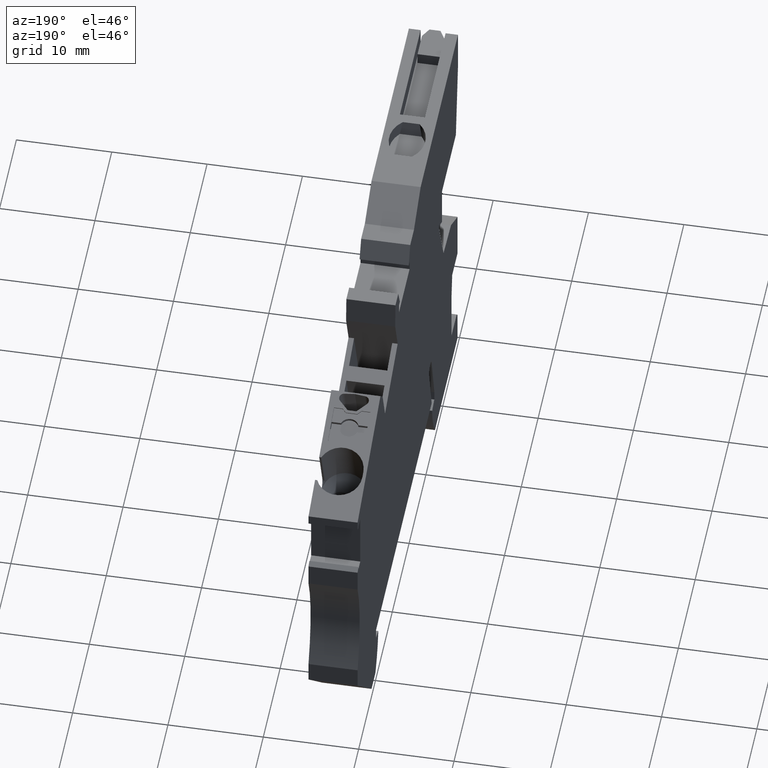
[diagram: clean part render]
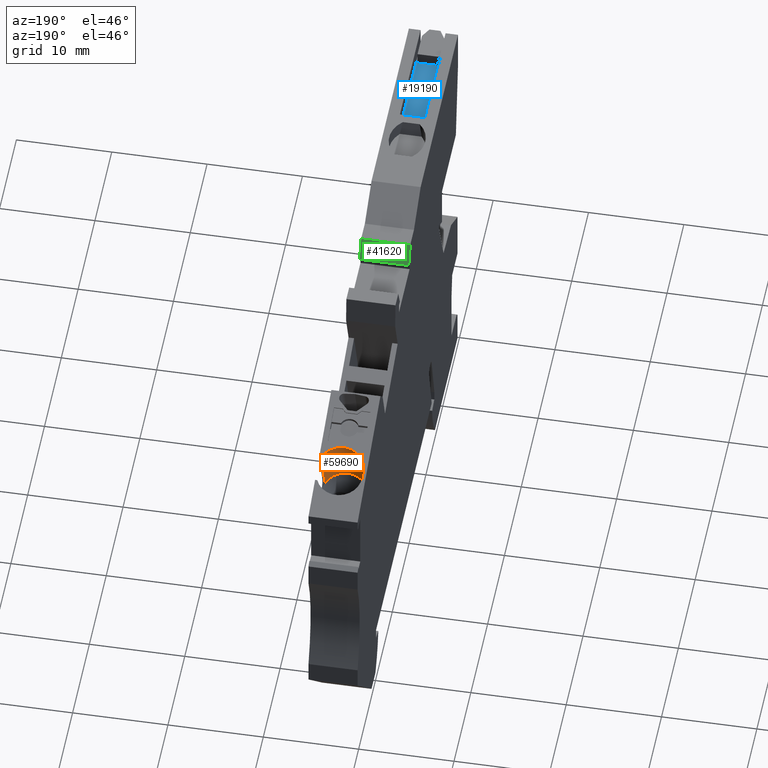
[diagram: same view with three faces highlighted in distinct colors, each labeled with its STEP entity id]
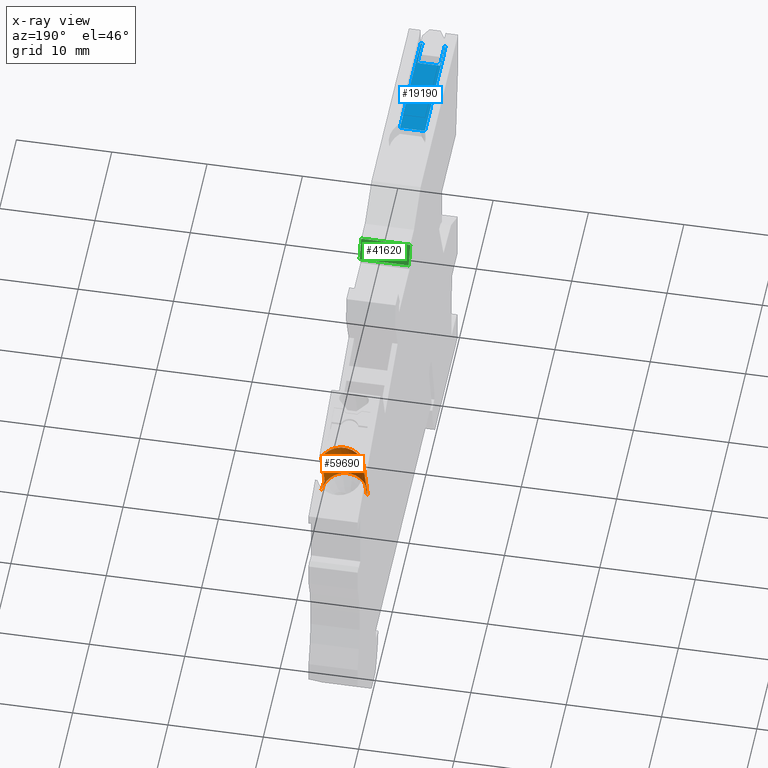
[diagram: x-ray of the same camera — body ghosted, the three highlighted faces saturated]
A machine part, auxiliary view with three faces highlighted in distinct colors.
The next image is the same camera in x-ray (body ghosted, the three faces saturated) — at least one of them is partly hidden behind the body in this view.
Their STEP definitions:

[orange] entity #59690 — the highlighted cylindrical surface (edge-blend (fillet) strip) has radius 2.4 mm, axis along (0, -0.342, -0.9397).
#4180=CARTESIAN_POINT('',(53.5100580872165,29.6902440694974,
-1.41213107160779E-7));
#4190=VERTEX_POINT('',#4180);
#10540=CARTESIAN_POINT('',(53.5100580844968,29.6902440580706,
-4.79999992240207));
#10550=VERTEX_POINT('',#10540);
#10600=CARTESIAN_POINT('',(54.3325377191678,33.2527947527318,
-4.79999992240662));
#10610=DIRECTION('',(-0.224951054344224,-0.974370064785153,
1.2457513775287E-12));
#10620=VECTOR('',#10610,1.);
#10630=LINE('',#10600,#10620);
#10640=CARTESIAN_POINT('',(54.9497449177092,35.9262128426441,
-4.79999992241005));
#10650=VERTEX_POINT('',#10640);
#10660=EDGE_CURVE('',#10650,#10550,#10630,.T.);
#14830=CARTESIAN_POINT('',(54.9497449177146,35.9262128426459,
-2.39999992241005));
#14840=DIRECTION('',(0.224951054344223,0.974370064785153,
-1.2457513775287E-12));
#14850=DIRECTION('',(4.85110966048145E-12,1.58552843778115E-13,1.));
#14860=AXIS2_PLACEMENT_3D('',#14830,#14840,#14850);
#14870=CIRCLE('',#14860,2.4);
#14880=CARTESIAN_POINT('',(53.9753748529301,36.1511638969928,
-0.218257499482878));
#14890=VERTEX_POINT('',#14880);
#14900=EDGE_CURVE('',#10650,#14890,#14870,.T.);
#15150=CARTESIAN_POINT('',(53.7350092267039,30.6646145035786,
0.479087859155975));
#15160=DIRECTION('',(2.24977625958046E-12,7.59117980544477E-13,1.));
#15170=DIRECTION('',(-0.974370064786396,0.224951054338839,
2.02135024971126E-12));
#15180=AXIS2_PLACEMENT_3D('',#15150,#15160,#15170);
#15190=TOROIDAL_SURFACE('',#15180,1.99018932402345,1.1);
#15670=CARTESIAN_POINT('',(52.6377552293482,30.3572967719191,
-0.218257499747246));
#15680=VERTEX_POINT('',#15670);
#15710=CARTESIAN_POINT('',(54.3325377191732,33.2527947527336,
-2.39999992240663));
#15720=DIRECTION('',(-0.224951054344224,-0.974370064785153,
1.24575137752871E-12));
#15730=DIRECTION('',(4.85110966048145E-12,1.58552843778081E-13,1.));
#15740=AXIS2_PLACEMENT_3D('',#15710,#15720,#15730);
#15750=CYLINDRICAL_SURFACE('',#15740,2.4);
#15760=CARTESIAN_POINT('',(53.5100581724138,29.6902444388583,
7.75979173773035E-8));
#15770=CARTESIAN_POINT('',(53.4866583937477,29.6956467034307,
7.75979210630361E-8));
#15780=CARTESIAN_POINT('',(53.4633810233544,29.7017306069387,
-0.0003610276634582));
#15790=CARTESIAN_POINT('',(53.4402968633737,29.7084796455487,
-0.00108242851969021));
#15800=CARTESIAN_POINT('',(53.4172127572336,29.7152286684175,
-0.00180382769335745));
#15810=CARTESIAN_POINT('',(53.3943232174725,29.7226424500266,
-0.00288548521188756));
#15820=CARTESIAN_POINT('',(53.3716968483296,29.7306921738519,
-0.00431864322120491));
#15830=CARTESIAN_POINT('',(53.3490686019926,29.7387425655217,
-0.00575192013230397));
#15840=CARTESIAN_POINT('',(53.3267125472656,29.7474252737895,
-0.00753590451697121));
#15850=CARTESIAN_POINT('',(53.3046687863748,29.7567100127158,
-0.00965643602230337));
#15860=CARTESIAN_POINT('',(53.2826144226945,29.7659992174923,
-0.0117779874783284));
#15870=CARTESIAN_POINT('',(53.2608224696534,29.7759124720335,
-0.0142413856634782));
#15880=CARTESIAN_POINT('',(53.2393463493926,29.7864152783823,
-0.0170306162525841));
#15890=CARTESIAN_POINT('',(53.2178702769168,29.796918061362,
-0.0198198406355622));
#15900=CARTESIAN_POINT('',(53.1967109722083,29.808009941747,
-0.022934759229247));
#15910=CARTESIAN_POINT('',(53.1759181582113,29.8196473232901,
-0.0263532958439706));
#15920=CARTESIAN_POINT('',(53.1551253132703,29.8312847221521,
-0.0297718375462012));
#15930=CARTESIAN_POINT('',(53.1346997650306,29.8434671216662,
-0.0334938174460878));
#15940=CARTESIAN_POINT('',(53.114684814739,29.8561436094476,
-0.0374919841218096));
#15950=CARTESIAN_POINT('',(53.0946794587851,29.868814020646,
-0.0414882342421051));
#15960=CARTESIAN_POINT('',(53.0750409617304,29.8820045395089,
-0.0457686107322197));
#15970=CARTESIAN_POINT('',(53.0557747407968,29.8956930235945,
-0.0503148881852059));
#15980=CARTESIAN_POINT('',(53.0365102204707,29.909380299413,
-0.0548607643434012));
#15990=CARTESIAN_POINT('',(53.0176257110189,29.9235604881807,
-0.0596709074397875));
#16000=CARTESIAN_POINT('',(52.9991460572071,29.9381931116971,
-0.0647196565856848));
#16010=CARTESIAN_POINT('',(52.9806664242907,29.9528257186682,
-0.0697684000228595));
#16020=CARTESIAN_POINT('',(52.9625920006654,29.9679104826965,
-0.0750556337085203));
#16030=CARTESIAN_POINT('',(52.9449445308229,29.9834028156126,
-0.0805530247456948));
#16040=CARTESIAN_POINT('',(52.9272970515905,29.9988951567721,
-0.0860504187079784));
#16050=CARTESIAN_POINT('',(52.9100768179125,30.0147947908358,
-0.0917578480350897));
#16060=CARTESIAN_POINT('',(52.8933015089145,30.0310539570729,
-0.0976449690786708));
#16070=CARTESIAN_POINT('',(52.8765261672879,30.0473131549347,
-0.103532101572921));
#16080=CARTESIAN_POINT('',(52.8601959812381,30.0639316238362,
-0.109598805380141));
#16090=CARTESIAN_POINT('',(52.8443239974915,30.0808594215837,
-0.115813460595676));
#16100=CARTESIAN_POINT('',(52.8284573434744,30.0977815350648,
-0.122026028962343));
#16110=CARTESIAN_POINT('',(52.8130077042616,30.115055851103,
-0.128402258063952));
#16120=CARTESIAN_POINT('',(52.7979746980399,30.1326554790564,
-0.134919353318088));
#16130=CARTESIAN_POINT('',(52.7679091195108,30.167854226966,
-0.147953355716283));
#16140=CARTESIAN_POINT('',(52.739518728551,30.2043473711378,
-0.161548210169035));
#16150=CARTESIAN_POINT('',(52.7128199880052,30.2418689275722,
-0.175502036475307));
#16160=CARTESIAN_POINT('',(52.6994707360637,30.2606295394901,
-0.182478887783697));
#16170=CARTESIAN_POINT('',(52.6865442645893,30.2796466701926,
-0.189545269663428));
#16180=CARTESIAN_POINT('',(52.6740403203998,30.2988854864202,
-0.196675654905526));
#16190=CARTESIAN_POINT('',(52.6615391113344,30.3181200943316,
-0.203804480440656));
#16200=CARTESIAN_POINT('',(52.6494522990688,30.3375873000428,
-0.211001399881603));
#16210=CARTESIAN_POINT('',(52.6377552291391,30.3572967720837,
-0.218257499939256));
#16220=B_SPLINE_CURVE_WITH_KNOTS('',3,(#15760,#15770,#15780,#15790,
#15800,#15810,#15820,#15830,#15840,#15850,#15860,#15870,#15880,#15890,
#15900,#15910,#15920,#15930,#15940,#15950,#15960,#15970,#15980,#15990,
#16000,#16010,#16020,#16030,#16040,#16050,#16060,#16070,#16080,#16090,
#16100,#16110,#16120,#16130,#16140,#16150,#16160,#16170,#16180,#16190,
#16200,#16210),.UNSPECIFIED.,.F.,.F.,(4,3,3,3,3,3,3,3,3,3,3,3,3,3,3,4),(
0.,0.0721259977469411,0.144317676656298,0.216428237093357,
0.288577326680435,0.360799414884299,0.432959559484218,0.505073300520012,
0.577335903161459,0.649679827350725,0.722004739805803,0.794188530249982,
0.866279158411221,1.01063653163837,1.0827738817519,1.15484973000732),
.UNSPECIFIED.);
#16230=SURFACE_CURVE('',#16220,(#15190,#15750),.CURVE_3D.);
#16240=EDGE_CURVE('',#4190,#15680,#16230,.T.);
#16400=CARTESIAN_POINT('',(53.3581676543823,33.4777458070819,
-0.218257499482433));
#16410=DIRECTION('',(-0.224951054344224,-0.974370064785153,
1.24575137752869E-12));
#16420=VECTOR('',#16410,1.);
#16430=LINE('',#16400,#16420);
#16440=EDGE_CURVE('',#14890,#15680,#16430,.T.);
#59510=CARTESIAN_POINT('',(54.3325377191731,33.2527947527336,
-2.39999992240663));
#59520=DIRECTION('',(-0.224951054344224,-0.974370064785153,
1.2457513775287E-12));
#59530=DIRECTION('',(4.85110966048144E-12,1.5855284377809E-13,1.));
#59540=AXIS2_PLACEMENT_3D('',#59510,#59520,#59530);
#59550=CYLINDRICAL_SURFACE('',#59540,2.4);
#59560=ORIENTED_EDGE('',*,*,#16440,.T.);
#59570=ORIENTED_EDGE('',*,*,#14900,.T.);
#59580=ORIENTED_EDGE('',*,*,#10660,.F.);
#59590=CARTESIAN_POINT('',(53.5100581723977,29.6902444387896,
-2.39999992240207));
#59600=DIRECTION('',(-0.224951054344224,-0.974370064785153,
1.2457513775287E-12));
#59610=DIRECTION('',(-4.8512057525487E-12,-1.58530659176347E-13,-1.));
#59620=AXIS2_PLACEMENT_3D('',#59590,#59600,#59610);
#59630=CIRCLE('',#59620,2.4);
#59640=EDGE_CURVE('',#4190,#10550,#59630,.T.);
#59650=ORIENTED_EDGE('',*,*,#59640,.T.);
#59660=ORIENTED_EDGE('',*,*,#16240,.F.);
#59670=EDGE_LOOP('',(#59660,#59650,#59580,#59570,#59560));
#59680=FACE_OUTER_BOUND('',#59670,.T.);
#59690=ADVANCED_FACE('',(#59680),#59550,.F.);

[blue] entity #19190 — the highlighted planar face has unit normal (0, -0, 1).
#18160=CARTESIAN_POINT('',(0.14984574861351,36.9256607090094,
-1.23015860348282));
#18170=VERTEX_POINT('',#18160);
#18200=CARTESIAN_POINT('',(1.0422773755181E-11,36.907261964564,
-1.23015860348282));
#18210=DIRECTION('',(0.992546151641327,0.121869343405112,
-3.5661909459823E-14));
#18220=VECTOR('',#18210,1.);
#18230=LINE('',#18200,#18220);
#18240=CARTESIAN_POINT('',(12.3529345047399,38.4240116035891,
-1.23015860348326));
#18250=VERTEX_POINT('',#18240);
#18260=EDGE_CURVE('',#18170,#18250,#18230,.T.);
#18450=CARTESIAN_POINT('',(7.14732463835025,37.7848430819131,
-2.26250014114553));
#18460=DIRECTION('',(-0.121869343405112,0.992546151641326,
2.43058932586706E-13));
#18470=DIRECTION('',(0.992546151641327,0.121869343405112,
4.92913851593367E-14));
#18480=AXIS2_PLACEMENT_3D('',#18450,#18460,#18470);
#18490=PLANE('',#18480);
#18500=CARTESIAN_POINT('',(1.03392849837292E-11,36.9072619645646,
-3.58549388179819));
#18510=DIRECTION('',(0.859570181749606,0.105541947331447,
-0.500000000000436));
#18520=VECTOR('',#18510,1.);
#18530=LINE('',#18500,#18520);
#18540=CARTESIAN_POINT('',(0.149845748609884,36.9256607090096,
-3.67265706625678));
#18550=VERTEX_POINT('',#18540);
#18560=CARTESIAN_POINT('',(0.282809346290702,36.9419865859669,
-3.75000013870393));
#18570=VERTEX_POINT('',#18560);
#18580=EDGE_CURVE('',#18550,#18570,#18530,.T.);
#18590=ORIENTED_EDGE('',*,*,#18580,.T.);
#18600=CARTESIAN_POINT('',(0.149845748613394,36.9256607090104,
-5.15000014121311));
#18610=DIRECTION('',(2.96214325230876E-14,-2.41247208160984E-13,1.));
#18620=VECTOR('',#18610,1.);
#18630=LINE('',#18600,#18620);
#18640=CARTESIAN_POINT('',(0.149845748613432,36.92566070901,
-3.85000013988254));
#18650=VERTEX_POINT('',#18640);
#18660=EDGE_CURVE('',#18650,#18550,#18630,.T.);
#18670=ORIENTED_EDGE('',*,*,#18660,.T.);
#18680=CARTESIAN_POINT('',(1.03295150211125E-11,36.9072619645647,
-3.85000013988254));
#18690=DIRECTION('',(-0.992546151641327,-0.121869343405112,
3.5661909459823E-14));
#18700=VECTOR('',#18690,1.);
#18710=LINE('',#18680,#18700);
#18720=CARTESIAN_POINT('',(12.3529345047397,38.4240116035897,
-3.85000013988298));
#18730=VERTEX_POINT('',#18720);
#18740=EDGE_CURVE('',#18730,#18650,#18710,.T.);
#18750=ORIENTED_EDGE('',*,*,#18740,.T.);
#18760=CARTESIAN_POINT('',(12.35293450474,38.4240116035888,
-4.44435599433746E-11));
#18770=DIRECTION('',(-6.50175235176146E-14,2.36901114670543E-13,-1.));
#18780=VECTOR('',#18770,1.);
#18790=LINE('',#18760,#18780);
#18800=EDGE_CURVE('',#18250,#18730,#18790,.T.);
#18810=ORIENTED_EDGE('',*,*,#18800,.T.);
#18820=ORIENTED_EDGE('',*,*,#18260,.T.);
#18830=CARTESIAN_POINT('',(0.149845748613661,36.9256607090095,
-1.47734321373585));
#18840=VERTEX_POINT('',#18830);
#18850=EDGE_CURVE('',#18840,#18170,#18630,.T.);
#18860=ORIENTED_EDGE('',*,*,#18850,.T.);
#18870=CARTESIAN_POINT('',(1.04103392573052E-11,36.9072619645641,
-1.56450639818775));
#18880=DIRECTION('',(-0.859570181750134,-0.105541947331267,
-0.499999999999566));
#18890=VECTOR('',#18880,1.);
#18900=LINE('',#18870,#18890);
#18910=CARTESIAN_POINT('',(0.282809346293483,36.9419865859667,
-1.40000014128947));
#18920=VERTEX_POINT('',#18910);
#18930=EDGE_CURVE('',#18920,#18840,#18900,.T.);
#18940=ORIENTED_EDGE('',*,*,#18930,.T.);
#18950=CARTESIAN_POINT('',(1.04165565062431E-11,36.9072619645641,
-1.40000014128932));
#18960=DIRECTION('',(-0.992546151641327,-0.121869343405112,
5.07187505805935E-13));
#18970=VECTOR('',#18960,1.);
#18980=LINE('',#18950,#18970);
#18990=CARTESIAN_POINT('',(2.92374606455541,37.2662528412907,
-1.40000014129082));
#19000=VERTEX_POINT('',#18990);
#19010=EDGE_CURVE('',#19000,#18920,#18980,.T.);
#19020=ORIENTED_EDGE('',*,*,#19010,.T.);
#19030=CARTESIAN_POINT('',(2.92374606455618,37.2662528412905,
-4.41051639654688E-11));
#19040=DIRECTION('',(5.46430606255046E-13,-1.77791020693731E-13,1.));
#19050=VECTOR('',#19040,1.);
#19060=LINE('',#19030,#19050);
#19070=CARTESIAN_POINT('',(2.92374606455413,37.2662528412911,
-3.75000013870526));
#19080=VERTEX_POINT('',#19070);
#19090=EDGE_CURVE('',#19080,#19000,#19060,.T.);
#19100=ORIENTED_EDGE('',*,*,#19090,.T.);
#19110=CARTESIAN_POINT('',(1.03330677347913E-11,36.9072619645646,
-3.75000013870378));
#19120=DIRECTION('',(0.992546151641327,0.121869343405112,
-5.00984134655842E-13));
#19130=VECTOR('',#19120,1.);
#19140=LINE('',#19110,#19130);
#19150=EDGE_CURVE('',#18570,#19080,#19140,.T.);
#19160=ORIENTED_EDGE('',*,*,#19150,.T.);
#19170=EDGE_LOOP('',(#19160,#19100,#19020,#18940,#18860,#18820,#18810,
#18750,#18670,#18590));
#19180=FACE_OUTER_BOUND('',#19170,.T.);
#19190=ADVANCED_FACE('',(#19180),#18490,.T.);

[green] entity #41620 — the highlighted planar face has unit normal (-0, -0.9155, -0.4023).
#2890=CARTESIAN_POINT('',(28.3651633164592,40.0878125404063,
-1.4121310698556E-7));
#2900=VERTEX_POINT('',#2890);
#2930=CARTESIAN_POINT('',(52.189647198695,2.01794136955868E-12,
-1.4121310698556E-7));
#2940=DIRECTION('',(-0.510892985900382,0.859644320028808,
3.66875417158635E-28));
#2950=VECTOR('',#2940,1.);
#2960=LINE('',#2930,#2950);
#2970=CARTESIAN_POINT('',(29.5398559227793,38.1112384736802,
-1.4121310698556E-7));
#2980=VERTEX_POINT('',#2970);
#2990=EDGE_CURVE('',#2980,#2900,#2960,.T.);
#7480=CARTESIAN_POINT('',(29.5398559227793,38.1112384736802,
-5.15000014116806));
#7490=VERTEX_POINT('',#7480);
#7520=CARTESIAN_POINT('',(52.189647198695,2.01794136955868E-12,
-5.15000014121311));
#7530=DIRECTION('',(-0.510892985900382,0.859644320028808,
3.66875417158635E-28));
#7540=VECTOR('',#7530,1.);
#7550=LINE('',#7520,#7540);
#7560=CARTESIAN_POINT('',(28.3651633164592,40.0878125404063,
-5.15000014116809));
#7570=VERTEX_POINT('',#7560);
#7580=EDGE_CURVE('',#7490,#7570,#7550,.T.);
#16910=CARTESIAN_POINT('',(28.3651633164592,40.0878125404063,
-5.15000014121311));
#16920=DIRECTION('',(1.47043672733197E-27,1.29373188456246E-27,-1.));
#16930=VECTOR('',#16920,1.);
#16940=LINE('',#16910,#16930);
#16950=EDGE_CURVE('',#2900,#7570,#16940,.T.);
#41350=CARTESIAN_POINT('',(29.5398559227793,38.1112384736802,
-5.15000014121311));
#41360=DIRECTION('',(-1.47043672733197E-27,-1.29373188456246E-27,1.));
#41370=VECTOR('',#41360,1.);
#41380=LINE('',#41350,#41370);
#41390=EDGE_CURVE('',#7490,#2980,#41380,.T.);
#41510=CARTESIAN_POINT('',(29.5398559227793,38.1112384736802,
-5.15000014121311));
#41520=DIRECTION('',(-0.859644320028808,-0.510892985900382,
-1.92501112607132E-27));
#41530=DIRECTION('',(0.510892985900382,-0.859644320028808,
-3.66875417158635E-28));
#41540=AXIS2_PLACEMENT_3D('',#41510,#41520,#41530);
#41550=PLANE('',#41540);
#41560=ORIENTED_EDGE('',*,*,#7580,.T.);
#41570=ORIENTED_EDGE('',*,*,#41390,.F.);
#41580=ORIENTED_EDGE('',*,*,#2990,.F.);
#41590=ORIENTED_EDGE('',*,*,#16950,.F.);
#41600=EDGE_LOOP('',(#41590,#41580,#41570,#41560));
#41610=FACE_OUTER_BOUND('',#41600,.T.);
#41620=ADVANCED_FACE('',(#41610),#41550,.F.);